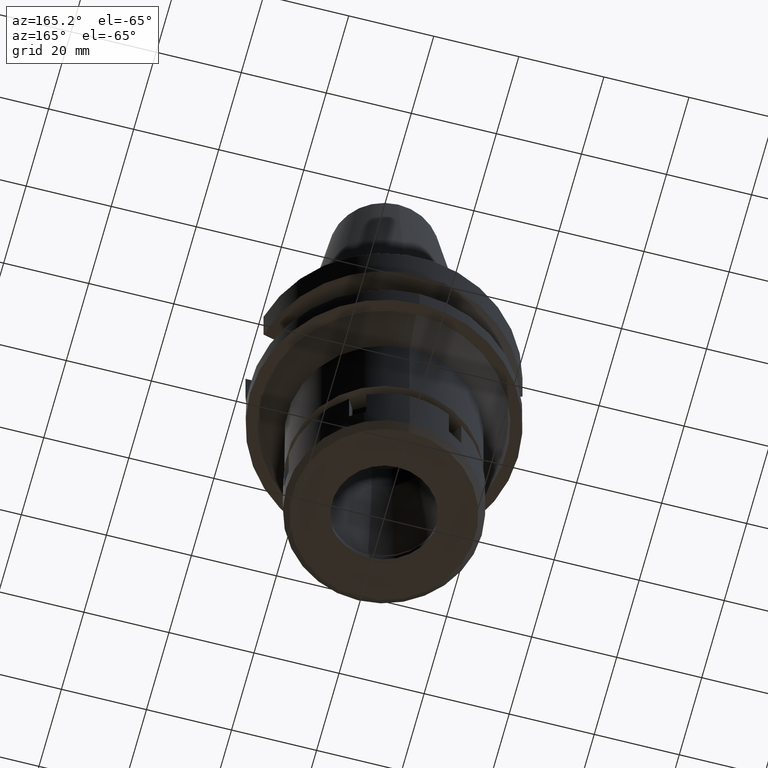
[diagram: clean part render]
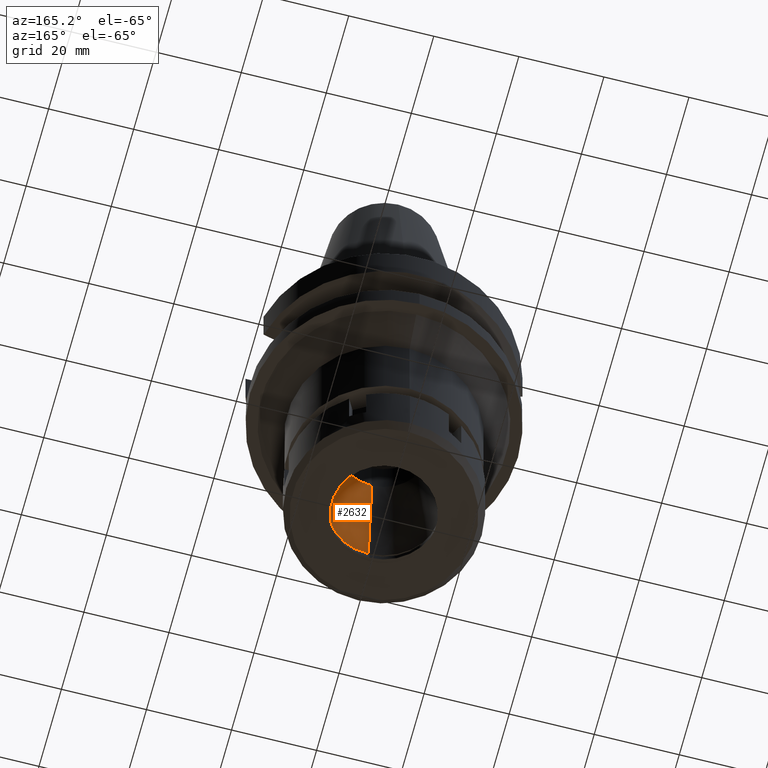
[diagram: same view with one face highlighted and labeled with its STEP entity id]
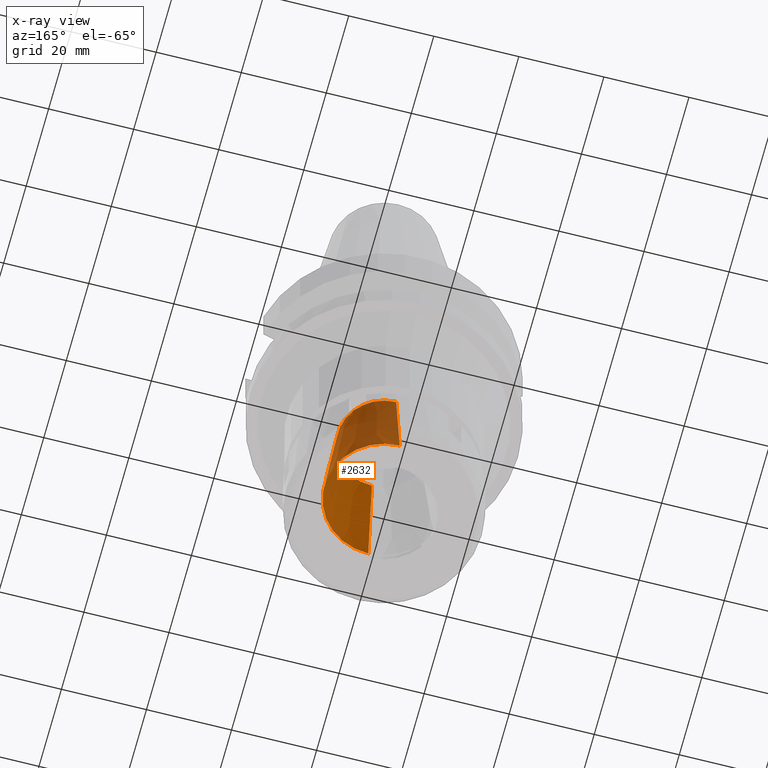
[diagram: x-ray of the same camera — body ghosted, the highlighted face saturated]
A machine part, auxiliary view. The second image highlights one B-rep face of the part: STEP entity #2632.
The next image is the same camera in x-ray: the body ghosted, the highlighted face saturated — about 37% of this face is hidden behind the body in this view.
In plain terms, the highlighted conical surface has half-angle 6 deg.
Its self-contained STEP definition (entity closure, byte-faithful):
#4 = DIRECTION ( 'NONE',  ( 0.0000000000000000000, -1.000000000000000000, 0.0000000000000000000 ) ) ;
#61 = DIRECTION ( 'NONE',  ( 0.0000000000000000000, 0.0000000000000000000, -1.000000000000000000 ) ) ;
#101 = CONICAL_SURFACE ( 'NONE', #748, 12.42343647100999959, 0.1047197551196402399 ) ;
#175 = VERTEX_POINT ( 'NONE', #1466 ) ;
#263 = DIRECTION ( 'NONE',  ( 0.0000000000000000000, 0.1045284632676965891, 0.9945218953682687379 ) ) ;
#319 = EDGE_LOOP ( 'NONE', ( #1189, #585, #3267, #1543 ) ) ;
#341 = DIRECTION ( 'NONE',  ( 0.0000000000000000000, 0.0000000000000000000, 1.000000000000000000 ) ) ;
#369 = DIRECTION ( 'NONE',  ( 0.0000000000000000000, -1.000000000000000000, 0.0000000000000000000 ) ) ;
#585 = ORIENTED_EDGE ( 'NONE', *, *, #759, .T. ) ;
#634 = CARTESIAN_POINT ( 'NONE',  ( 0.0000000000000000000, -14.00000000000000000, -67.00000000000000000 ) ) ;
#684 = EDGE_CURVE ( 'NONE', #906, #1212, #2462, .T. ) ;
#713 = EDGE_CURVE ( 'NONE', #736, #175, #1902, .T. ) ;
#736 = VERTEX_POINT ( 'NONE', #879 ) ;
#748 = AXIS2_PLACEMENT_3D ( 'NONE', #1761, #3386, #369 ) ;
#759 = EDGE_CURVE ( 'NONE', #175, #906, #1653, .T. ) ;
#879 = CARTESIAN_POINT ( 'NONE',  ( 0.0000000000000000000, 14.00000000000000000, -67.00000000000000000 ) ) ;
#887 = FACE_OUTER_BOUND ( 'NONE', #319, .T. ) ;
#906 = VERTEX_POINT ( 'NONE', #2040 ) ;
#945 = CARTESIAN_POINT ( 'NONE',  ( 0.0000000000000000000, 14.00000000000000000, -67.00000000000000000 ) ) ;
#1019 = VECTOR ( 'NONE', #263, 1000.000000000000227 ) ;
#1137 = CARTESIAN_POINT ( 'NONE',  ( 0.0000000000000000000, 0.0000000000000000000, -37.00000000000000000 ) ) ;
#1189 = ORIENTED_EDGE ( 'NONE', *, *, #713, .T. ) ;
#1201 = DIRECTION ( 'NONE',  ( 0.0000000000000000000, -0.1045284632676965891, 0.9945218953682687379 ) ) ;
#1212 = VERTEX_POINT ( 'NONE', #3040 ) ;
#1466 = CARTESIAN_POINT ( 'NONE',  ( 0.0000000000000000000, -14.00000000000000000, -67.00000000000000000 ) ) ;
#1543 = ORIENTED_EDGE ( 'NONE', *, *, #2232, .F. ) ;
#1653 = LINE ( 'NONE', #634, #1019 ) ;
#1761 = CARTESIAN_POINT ( 'NONE',  ( 0.0000000000000000000, 0.0000000000000000000, -52.00000000000000000 ) ) ;
#1902 = CIRCLE ( 'NONE', #2629, 14.00000000000000000 ) ;
#2040 = CARTESIAN_POINT ( 'NONE',  ( 0.0000000000000000000, -10.84687294202000096, -37.00000000000000000 ) ) ;
#2184 = CARTESIAN_POINT ( 'NONE',  ( 0.0000000000000000000, 0.0000000000000000000, -67.00000000000000000 ) ) ;
#2232 = EDGE_CURVE ( 'NONE', #736, #1212, #3122, .T. ) ;
#2462 = CIRCLE ( 'NONE', #2577, 10.84687294202000096 ) ;
#2577 = AXIS2_PLACEMENT_3D ( 'NONE', #1137, #341, #4 ) ;
#2629 = AXIS2_PLACEMENT_3D ( 'NONE', #2184, #61, #3344 ) ;
#2632 = ADVANCED_FACE ( 'NONE', ( #887 ), #101, .F. ) ;
#3040 = CARTESIAN_POINT ( 'NONE',  ( 0.0000000000000000000, 10.84687294202000096, -37.00000000000000000 ) ) ;
#3122 = LINE ( 'NONE', #945, #3204 ) ;
#3204 = VECTOR ( 'NONE', #1201, 1000.000000000000227 ) ;
#3267 = ORIENTED_EDGE ( 'NONE', *, *, #684, .T. ) ;
#3344 = DIRECTION ( 'NONE',  ( 0.0000000000000000000, 1.000000000000000000, 0.0000000000000000000 ) ) ;
#3386 = DIRECTION ( 'NONE',  ( 0.0000000000000000000, 0.0000000000000000000, -1.000000000000000000 ) ) ;